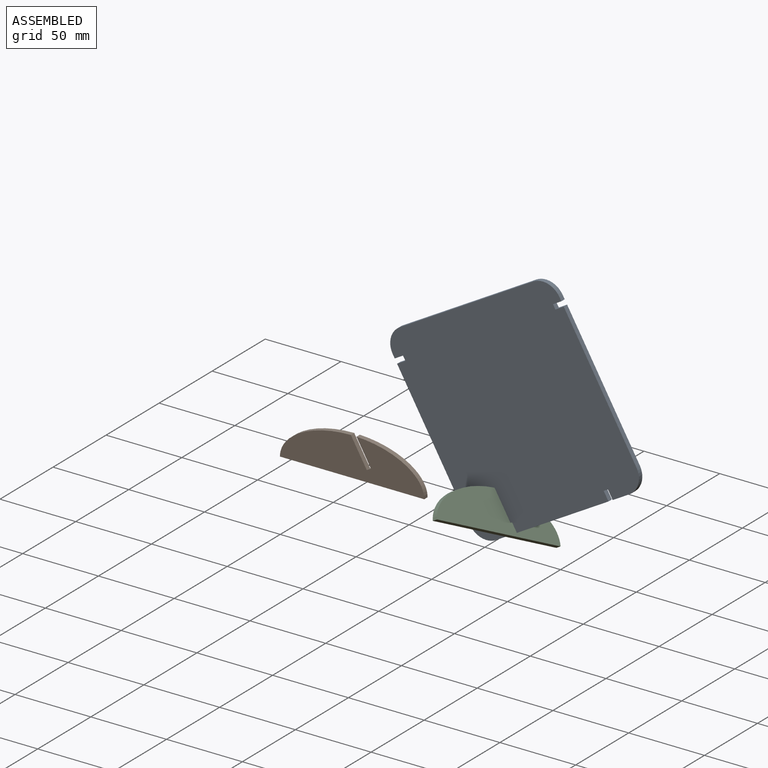
[diagram: assembled view]
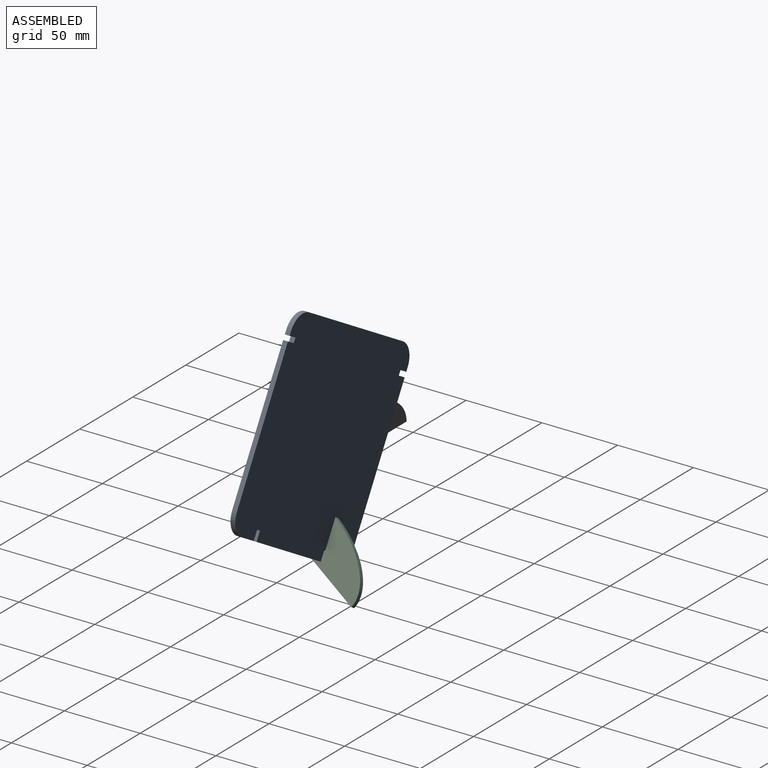
[diagram: assembled view, second angle]
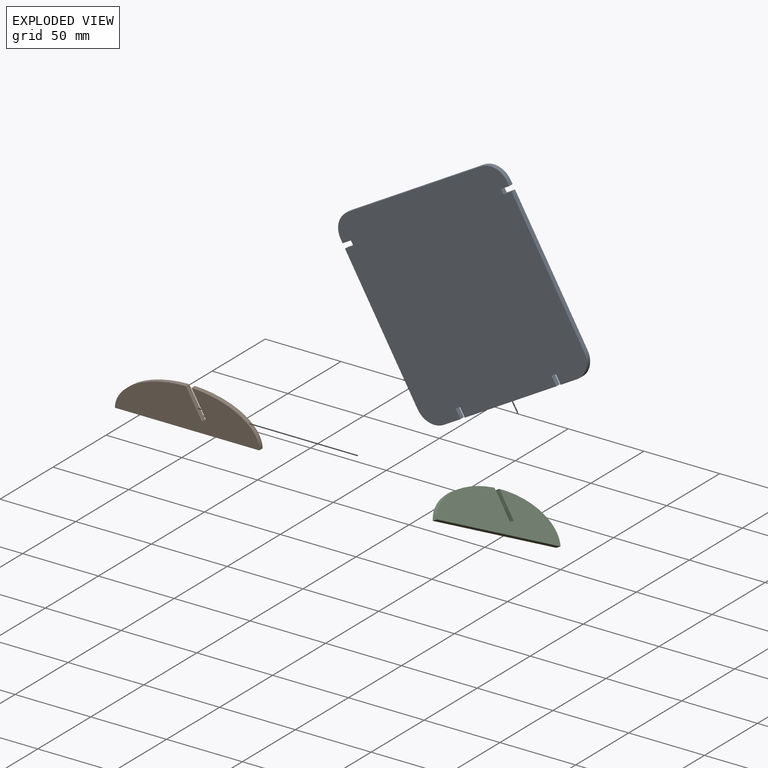
[diagram: exploded view]
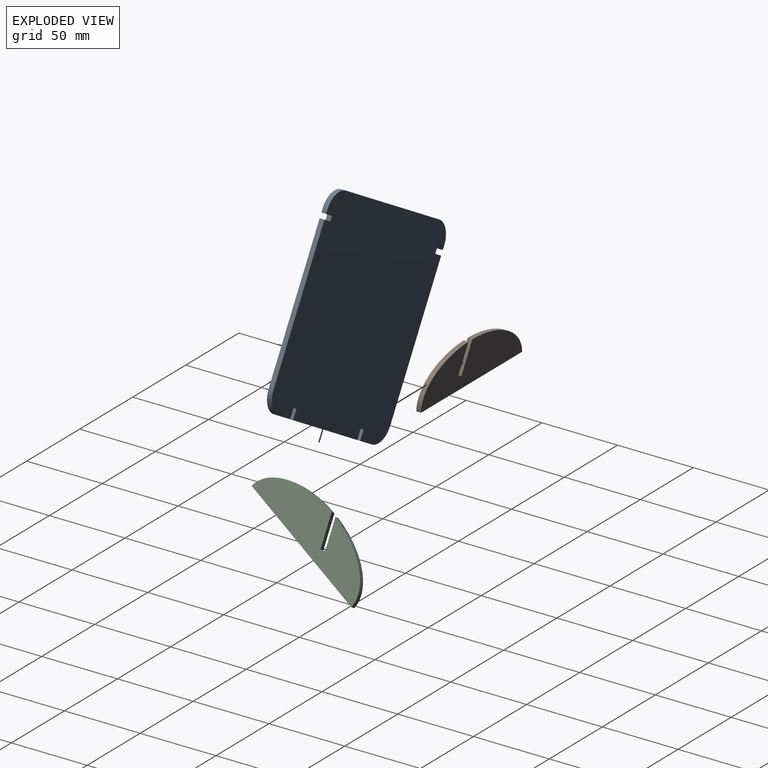
[diagram: exploded view, second angle]
ASSEMBLY  parts=3 mates=2
PART A: 26 faces, bbox 127x3.2x127 mm
  f0: plane 3.18x3.18mm, normal (1,0,0), area 10.1mm2, adj f1,f23,f24,f25
  f1: plane 6.35x3.18mm, normal (0,0,-1), area 20.2mm2, adj f0,f2,f24,f25
  f2: plane 3.18x2.54mm, normal (1,0,0), area 8.1mm2, adj f1,f3,f24,f25
  f3: cylinder r=12.7mm len=12.7mm, axis (0,1,0), area 63.3mm2, adj f2,f4,f24,f25
  f4: plane 101.6x3.18mm, normal (0,0,1), area 322.6mm2, adj f3,f5,f24,f25
  f5: cylinder r=12.7mm len=12.7mm, axis (0,1,0), area 63.3mm2, adj f4,f6,f24,f25
  f6: plane 3.18x2.54mm, normal (-1,0,0), area 8.1mm2, adj f5,f7,f24,f25
  f7: plane 6.35x3.18mm, normal (0,0,-1), area 20.2mm2, adj f6,f8,f24,f25
  f8: plane 3.18x3.18mm, normal (-1,0,0), area 10.1mm2, adj f7,f9,f24,f25
  f9: plane 6.35x3.18mm, normal (0,0,1), area 20.2mm2, adj f8,f10,f24,f25
  f10: plane 95.89x3.18mm, normal (-1,0,0), area 304.4mm2, adj f9,f11,f24,f25
  f11: cylinder r=12.7mm len=12.7mm, axis (0,1,0), area 63.3mm2, adj f10,f12,f24,f25
  f12: plane 12.7x3.18mm, normal (0,0,-1), area 40.3mm2, adj f11,f13,f24,f25
  f13: plane 6.35x3.18mm, normal (1,0,0), area 20.2mm2, adj f12,f14,f24,f25
  f14: plane 3.18x3.18mm, normal (0,0,-1), area 10.1mm2, adj f13,f15,f24,f25
  f15: plane 6.35x3.18mm, normal (-1,0,0), area 20.2mm2, adj f14,f16,f24,f25
  f16: plane 69.85x3.18mm, normal (0,0,-1), area 221.8mm2, adj f15,f17,f24,f25
  f17: plane 6.35x3.18mm, normal (1,0,0), area 20.2mm2, adj f16,f18,f24,f25
  f18: plane 3.18x3.18mm, normal (0,0,-1), area 10.1mm2, adj f17,f19,f24,f25
  f19: plane 6.35x3.18mm, normal (-1,0,0), area 20.2mm2, adj f18,f20,f24,f25
  f20: plane 12.7x3.18mm, normal (0,0,-1), area 40.3mm2, adj f19,f21,f24,f25
  f21: cylinder r=12.7mm len=12.7mm, axis (0,1,0), area 63.3mm2, adj f20,f22,f24,f25
  f22: plane 95.89x3.18mm, normal (1,0,0), area 304.4mm2, adj f21,f23,f24,f25
  f23: plane 6.35x3.18mm, normal (0,0,1), area 20.2mm2, adj f0,f22,f24,f25
  f24: plane 127x127mm, normal (0,-1,0), area 15909.9mm2, adj f0,f1,f2,f3,f4,f5,f6,f7
  f25: plane 127x127mm, normal (0,1,0), area 15909.9mm2, adj f0,f1,f2,f3,f4,f5,f6,f7
PART B: 8 faces, bbox 95.3x3.2x25.4 mm
  f0: plane 3.18x2.75mm, normal (-0.5,0,0.87), area 10.1mm2, adj f1,f5,f6,f7
  f1: plane 18.13x10.47mm, normal (0.87,0,0.5), area 66.5mm2, adj f0,f2,f6,f7
  f2: extruded ~46.85x25.4mm, area 183.9mm2, adj f1,f3,f6,f7
  f3: plane 95.25x3.18mm, normal (0,0,-1), area 302.4mm2, adj f2,f4,f6,f7
  f4: extruded ~44.7x25.35mm, area 177.1mm2, adj f3,f5,f6,f7
  f5: plane 16.5x9.53mm, normal (-0.87,0,-0.5), area 60.5mm2, adj f0,f4,f6,f7
  f6: plane 95.25x25.4mm, normal (0,-1,0), area 1836.6mm2, adj f0,f1,f2,f3,f4,f5
  f7: plane 95.25x25.4mm, normal (0,1,0), area 1836.6mm2, adj f0,f1,f2,f3,f4,f5
PART C: same geometry as B
PLACE A rot(axis=(0,-1,0),30deg) t=(21.2,-3.62,-63.97)mm
PLACE B t=(-37.98,-39.1,-25.76)mm
PLACE C rot(axis=(-0.5,0,0.87),90deg) t=(39.68,-18.83,-47.64)mm
MATE planar A.f14 <-> C.f0  axis (0.5,0,-0.87) through (41.39,-5.21,-44.98)mm
MATE planar A.f25 <-> C.f5  axis (0,1,0) through (44.42,-3.62,22.8)mm
